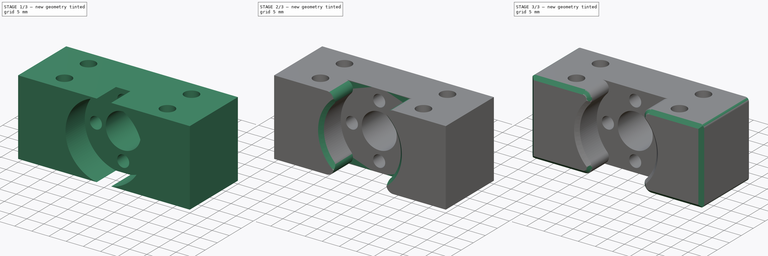
[diagram: build sequence overview — one tinted view per stage of 3, left to right]
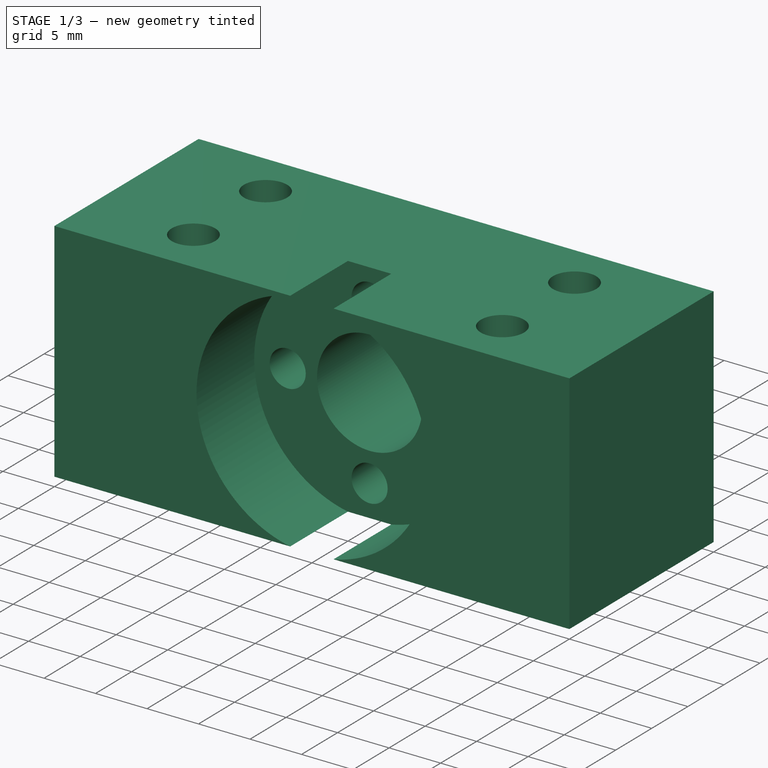
[diagram: stage 1 of 3 — iso view after this stage's code; geometry added in this stage tinted green]
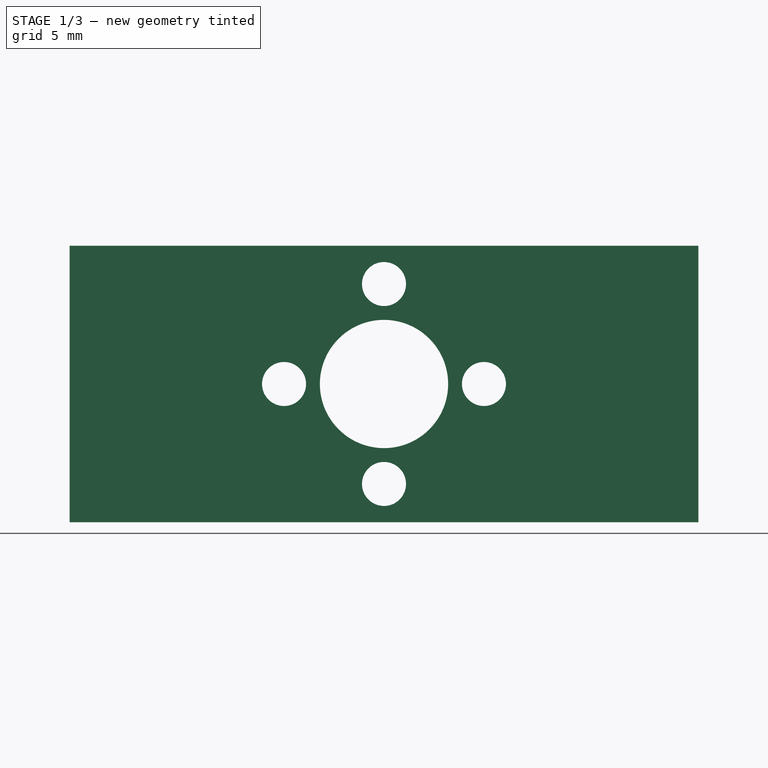
[diagram: stage 1 of 3 — front view after this stage's code; geometry added in this stage tinted green]
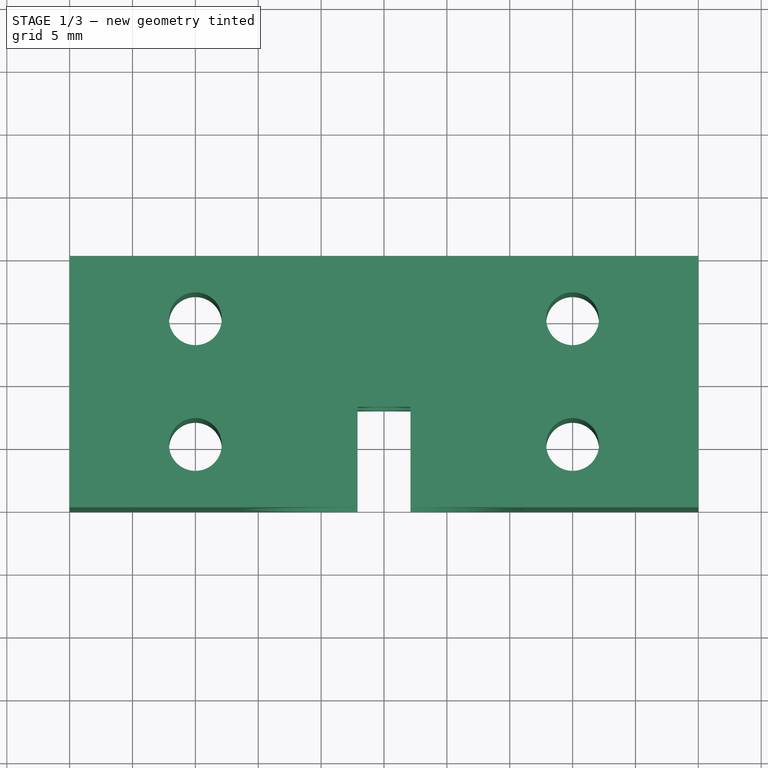
[diagram: stage 1 of 3 — top view after this stage's code; geometry added in this stage tinted green]
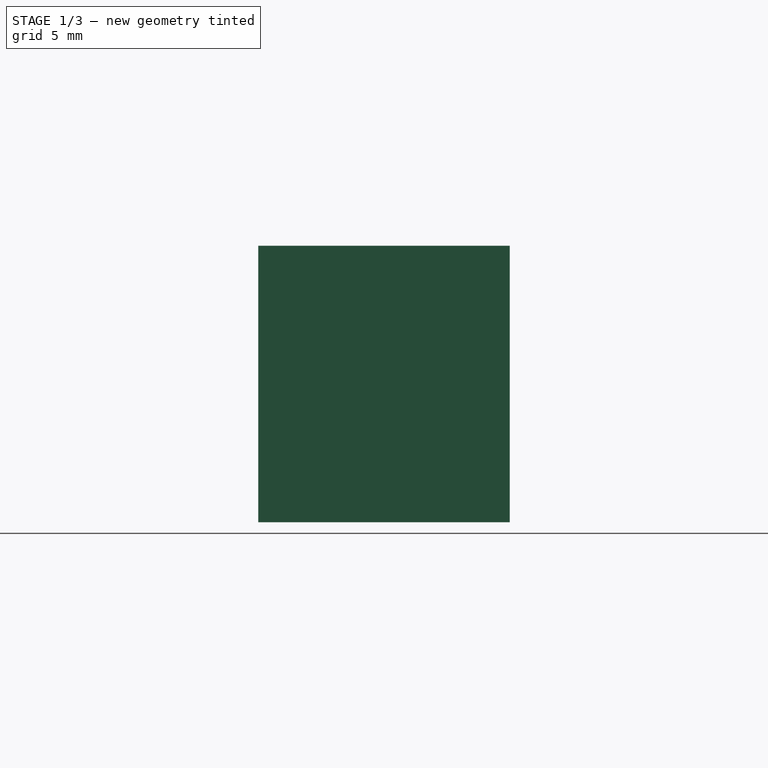
[diagram: stage 1 of 3 — right view after this stage's code; geometry added in this stage tinted green]
FCSTD DOCUMENT  (FreeCAD 0.18R16110 (Git))
Label: nutblock1h_chamf
License: All rights reserved
LicenseURL: http://en.wikipedia.org/wiki/All_rights_reserved
objects: Sketcher::SketchObject×3, PartDesign::Chamfer×3, PartDesign::Pocket×2, PartDesign::Fillet×2, PartDesign::Pad×1, PartDesign::Body×1
note: 15 computed .brp shape members not serialized (recipe doc carries the construction recipe); baked Part::Feature solids carry a one-line shape summary decoded from their .brp

FEATURE [Sketcher::SketchObject] Sketch
  MapMode = 5
  Support = -> [XY_Plane]
  sketch-geometry (8):
    g0: LineSegment StartX=0 StartY=20 StartZ=0 EndX=50 EndY=20 EndZ=0
    g1: LineSegment StartX=50 StartY=20 StartZ=0 EndX=50 EndY=0 EndZ=0
    g2: LineSegment StartX=50 StartY=0 StartZ=0 EndX=0 EndY=0 EndZ=0
    g3: LineSegment StartX=0 StartY=0 StartZ=0 EndX=0 EndY=20 EndZ=0
    g4: Circle CenterX=10 CenterY=15 CenterZ=0 NormalX=0 NormalY=0 NormalZ=1 AngleXU=0 Radius=2.1
    g5: Circle CenterX=10 CenterY=5 CenterZ=0 NormalX=0 NormalY=0 NormalZ=1 AngleXU=0 Radius=2.1
    g6: Circle CenterX=40 CenterY=15 CenterZ=0 NormalX=0 NormalY=0 NormalZ=1 AngleXU=0 Radius=2.1
    g7: Circle CenterX=40 CenterY=5 CenterZ=0 NormalX=0 NormalY=0 NormalZ=1 AngleXU=0 Radius=2.1
  constraints (23):
    c: Coincident(g0,g1)
    c: Coincident(g1,g2)
    c: Coincident(g2,g3)
    c: Coincident(g3,g0)
    c: Horizontal(g0)
    c: Horizontal(g2)
    c: Vertical(g1)
    c: Vertical(g3)
    c: DistanceX(g0,g0) = 50
    c: DistanceY(g3,g3) = 20
    c: Coincident(g2,g-1)
    c: DistanceX(g2,g5) = 10
    c: DistanceX(g4,g5) = 0
    c: DistanceX(g4,g6) = 30
    c: DistanceX(g6,g7) = 0
    c: DistanceY(g2,g5) = 5
    c: DistanceY(g5,g4) = 10
    c: DistanceY(g5,g7) = 0
    c: DistanceY(g4,g6) = 0
    c: Radius(g4) = 2.1  'durchgangsloch_m6'
    c: Equal(g4,g6)
    c: Equal(g4,g7)
    c: Equal(g4,g5)
FEATURE [PartDesign::Pad] Pad
  Length = 22
  Length2 = 100
  Profile = -> Sketch
  Type = 0
FEATURE [Sketcher::SketchObject] Sketch001
  MapMode = 5
  Placement = pos=(0,0,0) rot=(1,0,0;1.5708rad)
  Support = -> [Pad]
  sketch-geometry (1):
    g0: Circle CenterX=25 CenterY=11 CenterZ=0 NormalX=0 NormalY=0 NormalZ=1 AngleXU=0 Radius=11.2
  constraints (3):
    c: DistanceY(g-1,g0) = 11
    c: DistanceX(g-1,g0) = 25
    c: Radius(g0) = 11.2
FEATURE [PartDesign::Pocket] Pocket
  BaseFeature = -> Pad
  Length = 8
  Length2 = 100
  Profile = -> Sketch001
  Type = 0
FEATURE [Sketcher::SketchObject] Sketch002
  MapMode = 5
  Placement = pos=(0,20,0) rot=(0,0.707107,0.707107;3.14159rad)
  Support = -> [Pocket]
  sketch-geometry (5):
    g0: Circle CenterX=-25 CenterY=11 CenterZ=0 NormalX=0 NormalY=0 NormalZ=1 AngleXU=0 Radius=5.1
    g1: Circle CenterX=-25 CenterY=18.95 CenterZ=0 NormalX=0 NormalY=0 NormalZ=1 AngleXU=0 Radius=1.75
    g2: Circle CenterX=-25 CenterY=3.05 CenterZ=0 NormalX=0 NormalY=0 NormalZ=1 AngleXU=0 Radius=1.75
    g3: Circle CenterX=-32.95 CenterY=11 CenterZ=0 NormalX=0 NormalY=0 NormalZ=1 AngleXU=0 Radius=1.75
    g4: Circle CenterX=-17.05 CenterY=11 CenterZ=0 NormalX=0 NormalY=0 NormalZ=1 AngleXU=0 Radius=1.75
  constraints (15):
    c: DistanceX(g0,g-1) = 25
    c: DistanceY(g-1,g0) = 11
    c: Radius(g0) = 5.1
    c: DistanceX(g1,g0) = 0
    c: DistanceY(g0,g1) = 7.95
    c: Radius(g1) = 1.75
    c: DistanceY(g2,g0) = 7.95
    c: DistanceX(g0,g2) = 0
    c: Radius(g2) = 1.75
    c: DistanceY(g0,g3) = 0
    c: DistanceX(g3,g0) = 7.95
    c: Radius(g3) = 1.75
    c: DistanceY(g0,g4) = 0
    c: DistanceX(g0,g4) = 7.95
    c: Radius(g4) = 1.75
FEATURE [PartDesign::Pocket] Pocket001
  BaseFeature = -> Pocket
  Length = 20
  Length2 = 100
  Profile = -> Sketch002
  Type = 0
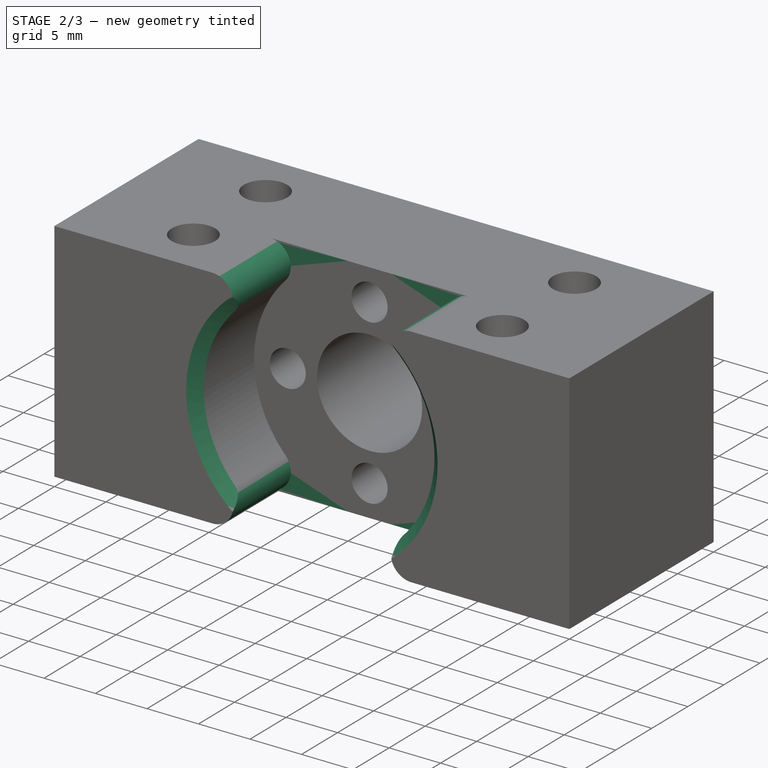
[diagram: stage 2 of 3 — iso view after this stage's code; geometry added in this stage tinted green]
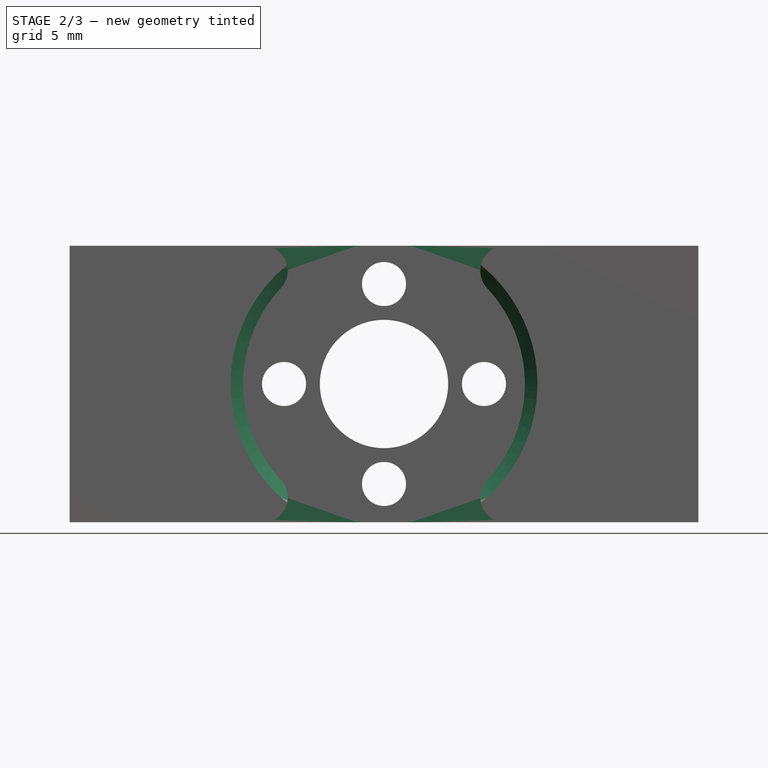
[diagram: stage 2 of 3 — front view after this stage's code; geometry added in this stage tinted green]
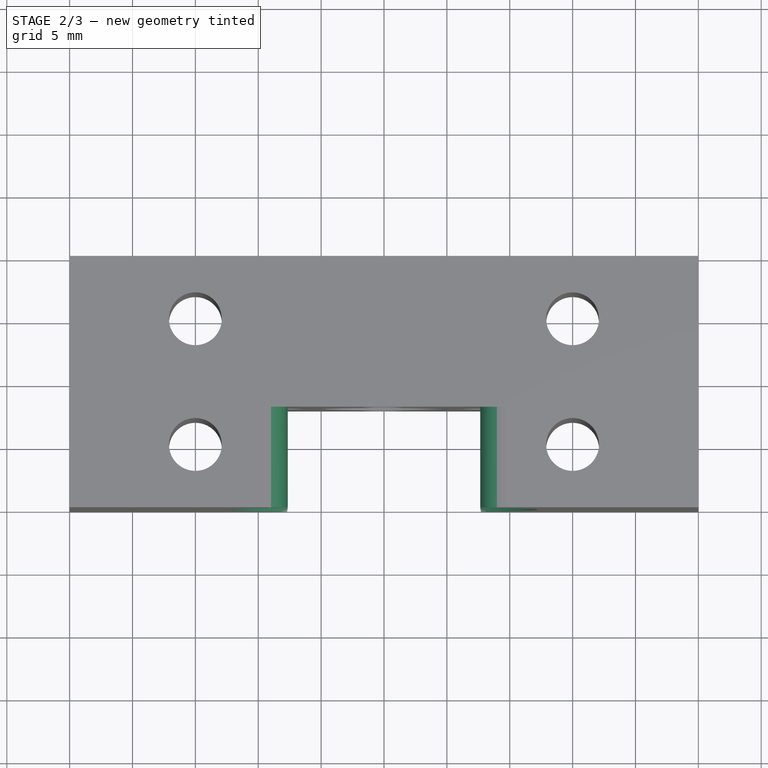
[diagram: stage 2 of 3 — top view after this stage's code; geometry added in this stage tinted green]
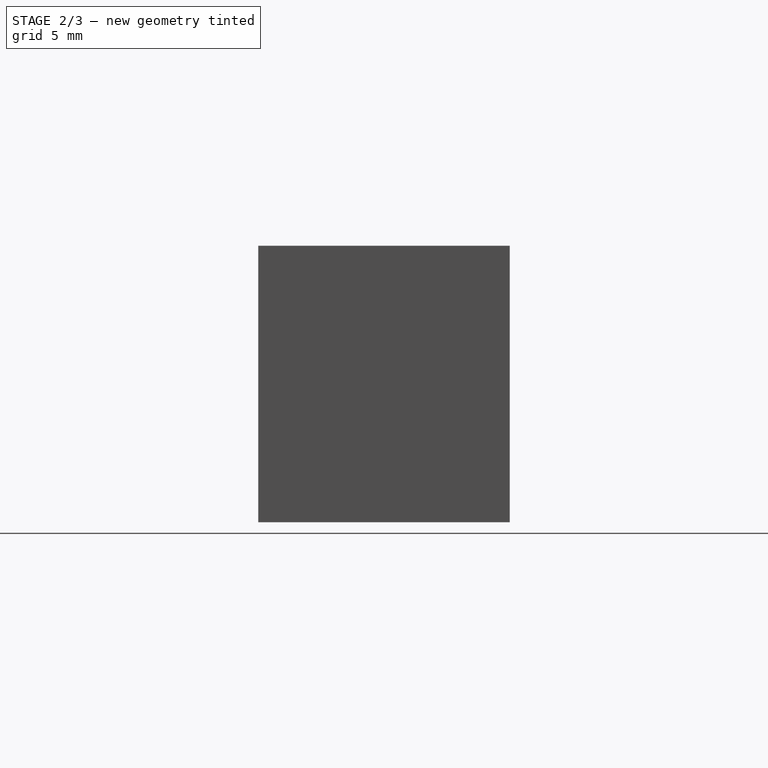
[diagram: stage 2 of 3 — right view after this stage's code; geometry added in this stage tinted green]
FEATURE [PartDesign::Chamfer] Chamfer
  Base = -> Pocket001 [Edge44,Edge50]
  BaseFeature = -> Pocket001
  Size = 1
FEATURE [PartDesign::Fillet] Fillet
  Base = -> Chamfer [Edge4,Edge8,Edge23,Edge55]
  BaseFeature = -> Chamfer
  Radius = 2
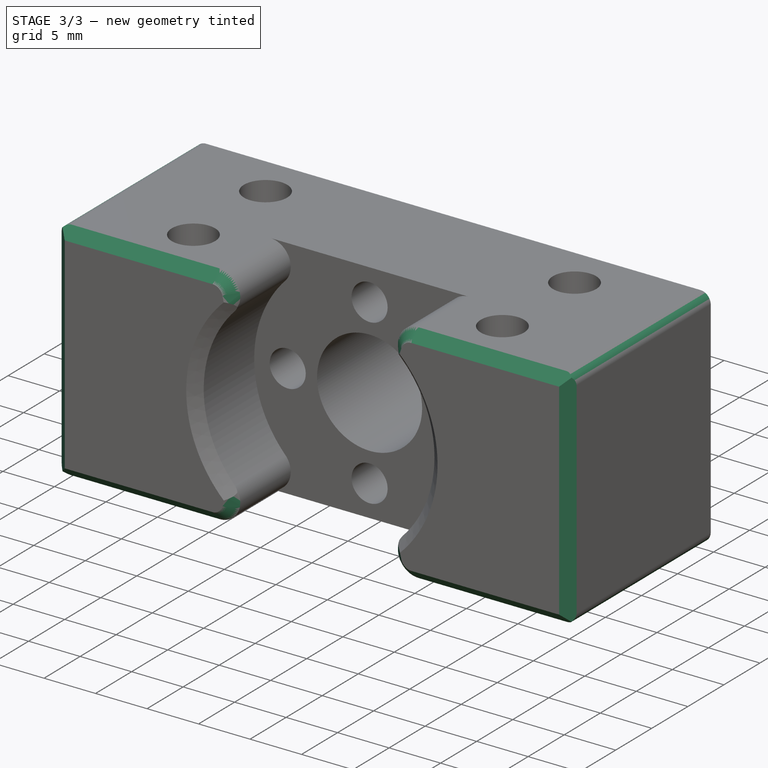
[diagram: stage 3 of 3 — iso view after this stage's code; geometry added in this stage tinted green]
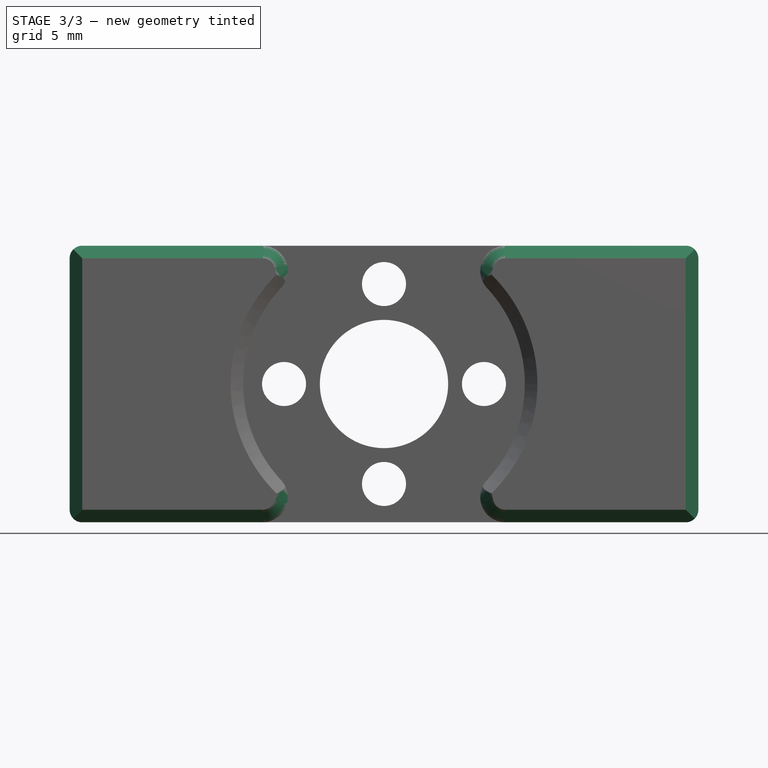
[diagram: stage 3 of 3 — front view after this stage's code; geometry added in this stage tinted green]
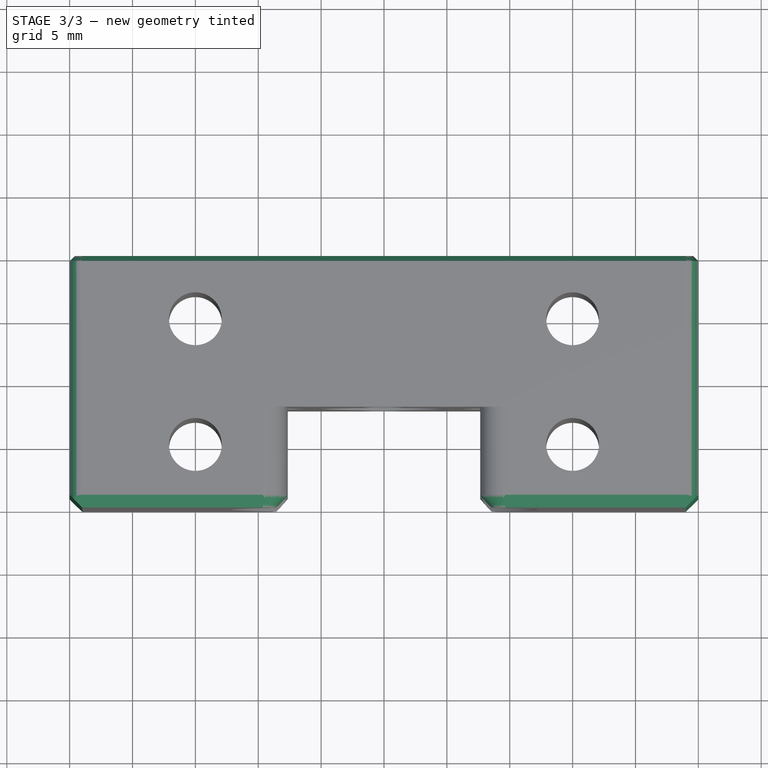
[diagram: stage 3 of 3 — top view after this stage's code; geometry added in this stage tinted green]
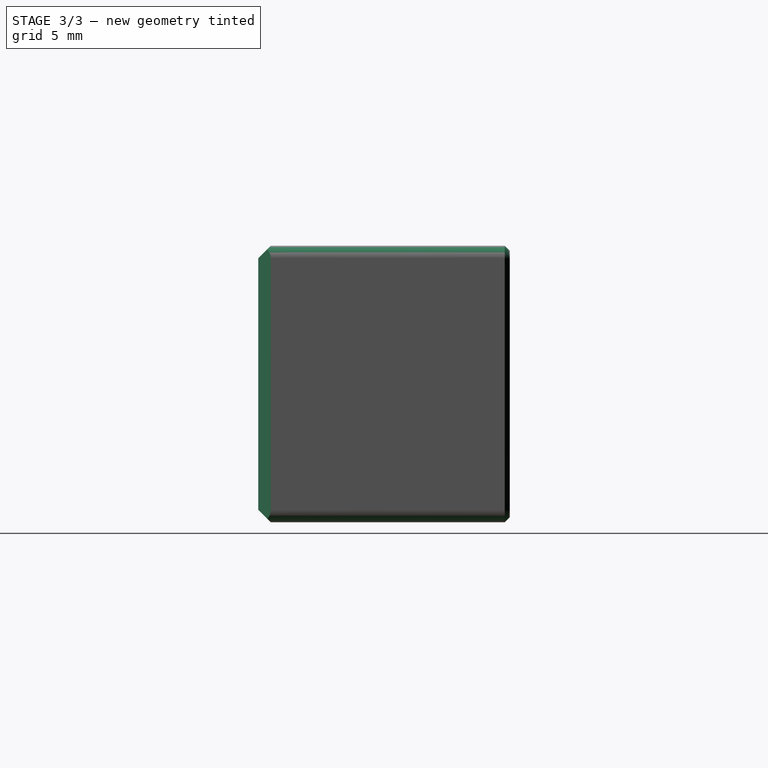
[diagram: stage 3 of 3 — right view after this stage's code; geometry added in this stage tinted green]
FEATURE [PartDesign::Chamfer] Chamfer001
  Base = -> Fillet [Edge18,Edge16,Edge1,Edge9,Edge46,Edge50]
  BaseFeature = -> Fillet
  Size = 1
FEATURE [PartDesign::Fillet] Fillet001
  Base = -> Chamfer001 [Edge4,Edge8,Edge48,Edge39]
  BaseFeature = -> Chamfer001
  Radius = 1
FEATURE [PartDesign::Chamfer] Chamfer002
  Base = -> Fillet001 [Edge31,Edge29,Edge28,Edge27,Edge20,Edge4,Edge30,Edge32]
  BaseFeature = -> Fillet001
  Size = 0.4
FEATURE [PartDesign::Body] Body
  Group = -> [Sketch,Pad,Sketch001,Pocket,Sketch002,Pocket001,Chamfer,Fillet,Chamfer001,Fillet001,Chamfer002]
  Origin = -> Origin
  Tip = -> Chamfer002
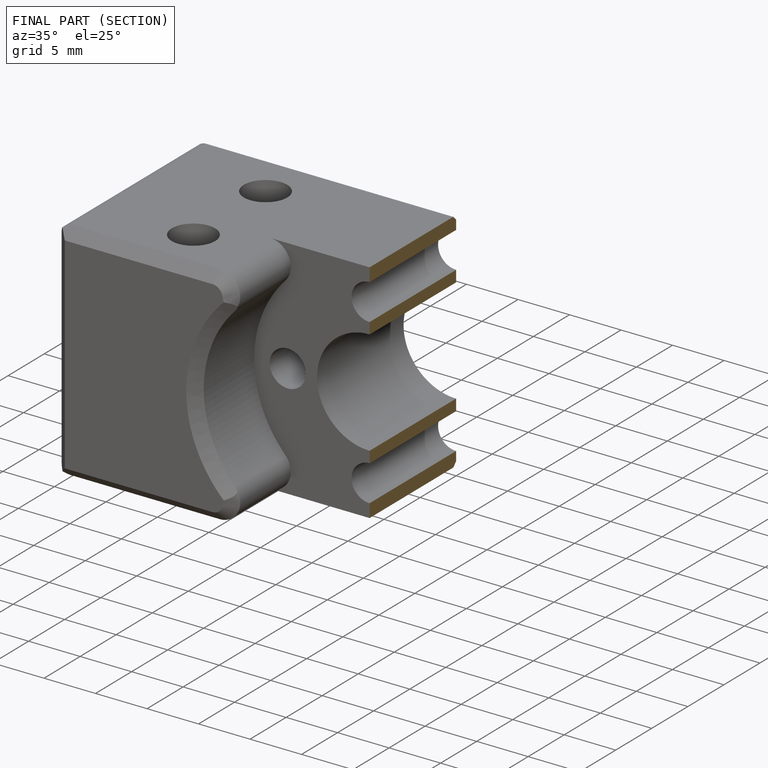
[diagram: finished part — half-section view (interior)]
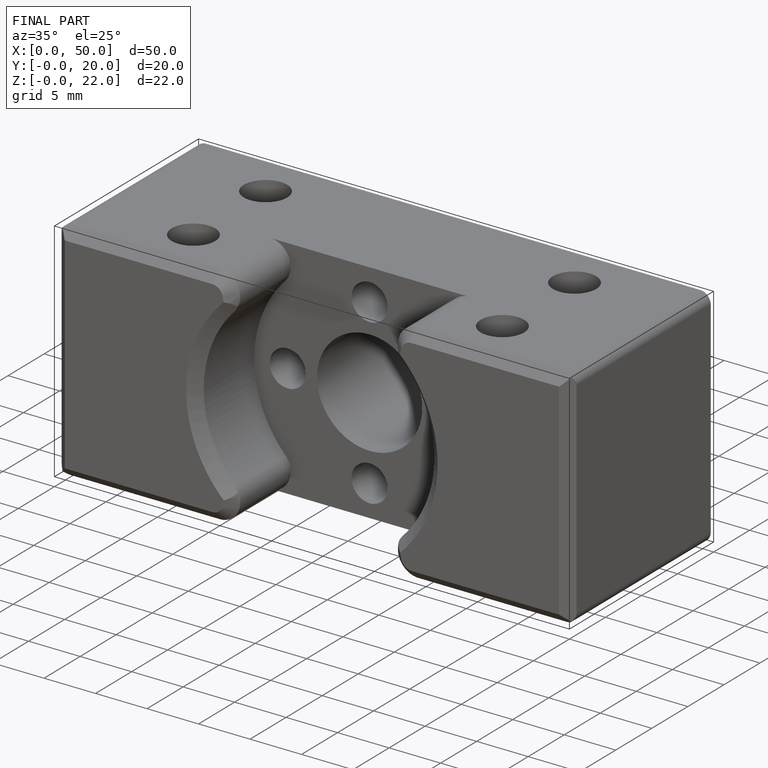
[diagram: finished part — iso view with bounding-box wireframe]
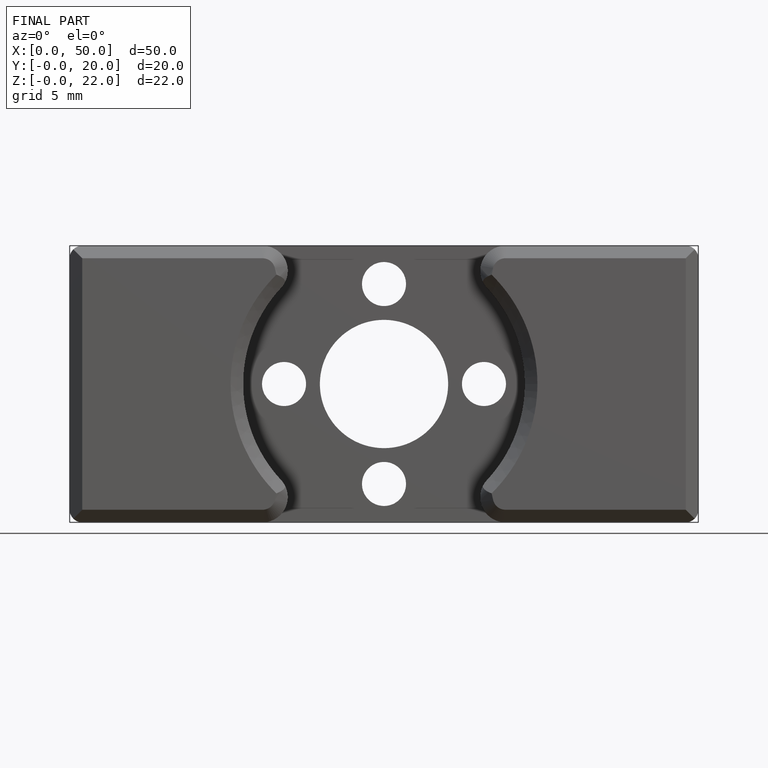
[diagram: finished part — front view with bounding-box wireframe]
